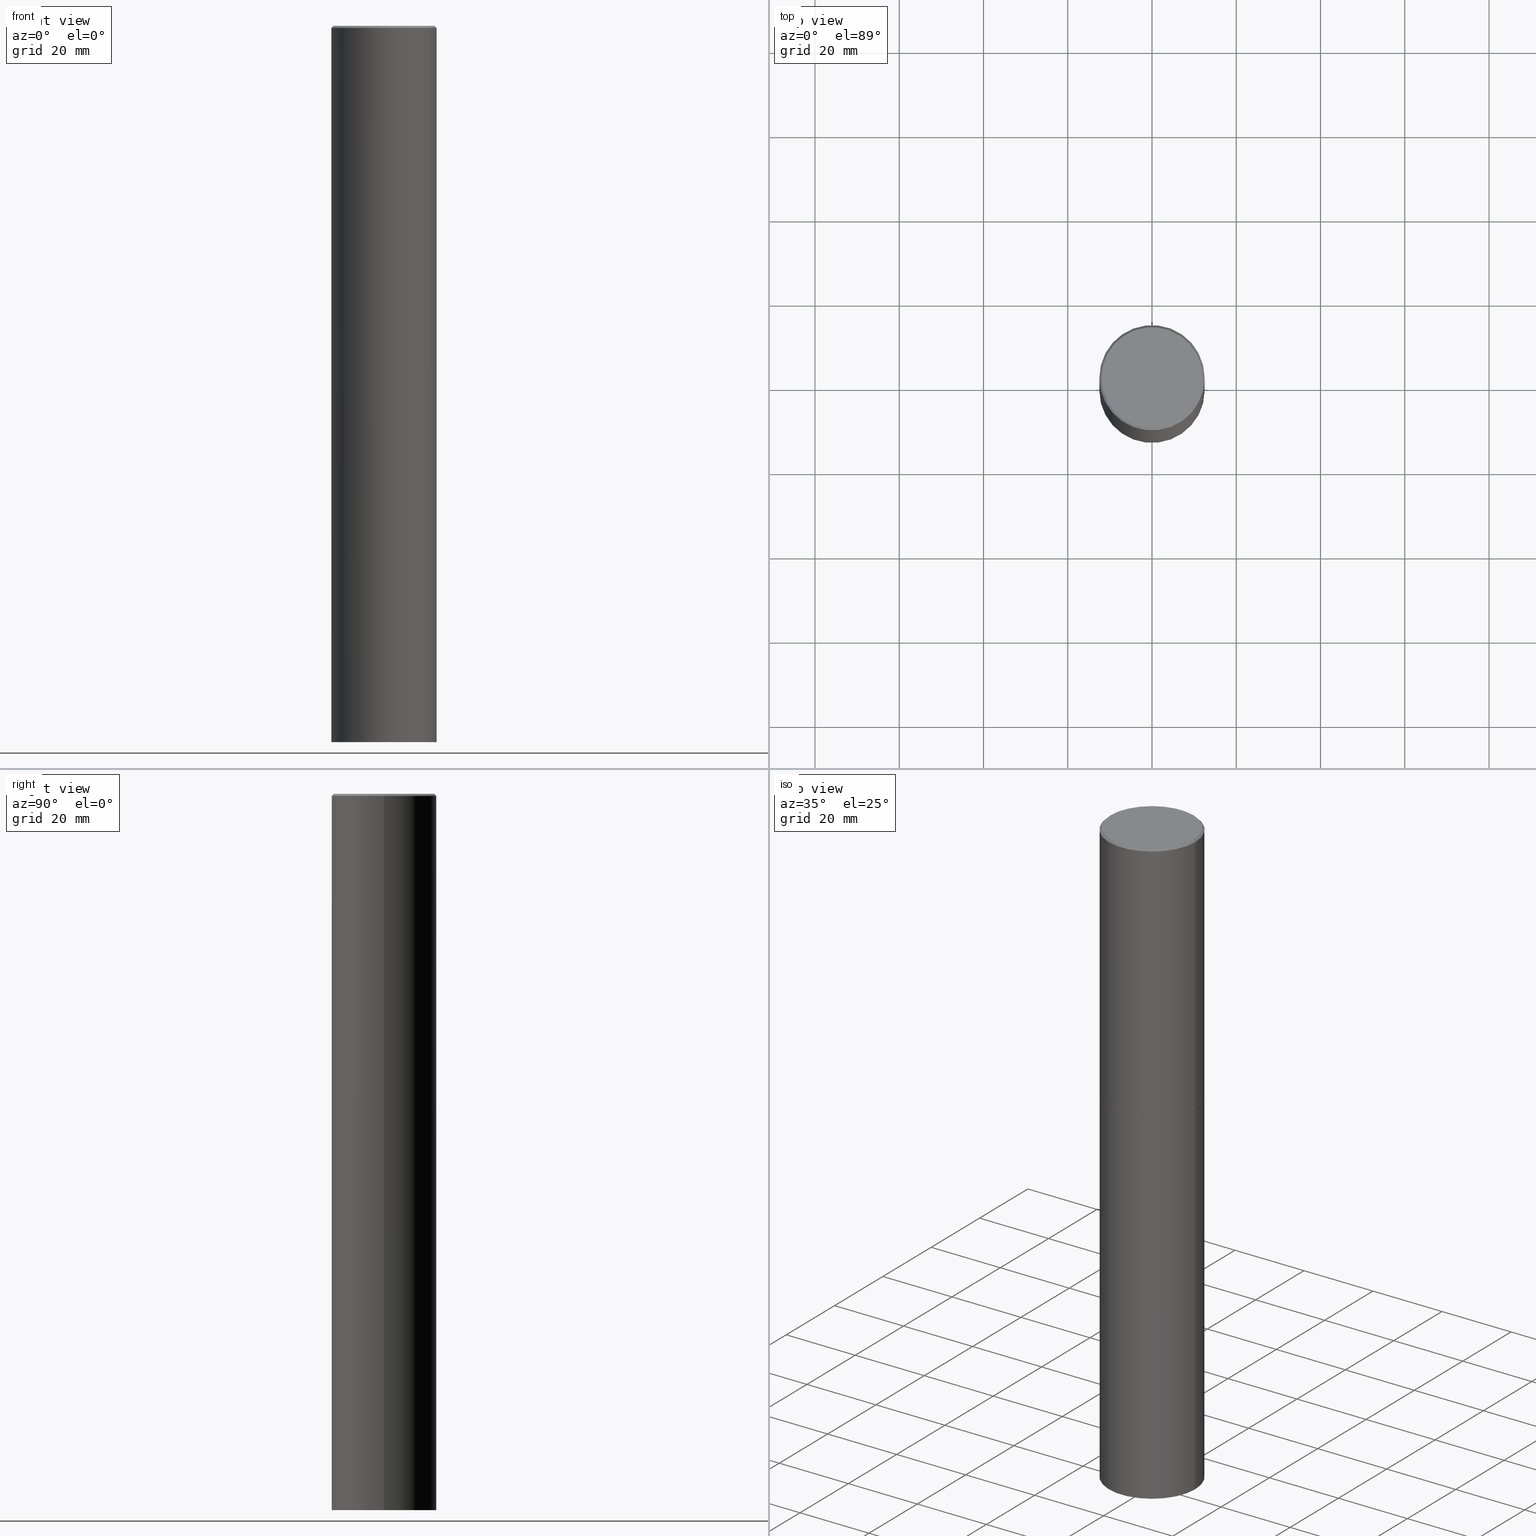
[diagram: canonical four-view strip — front | top / right | iso, engineering-drawing reading convention]
A machine part, canonical four-view strip (front | top / right | iso — engineering-drawing reading convention). The complete STEP part file that produces these views, byte-faithful:
ISO-10303-21;
HEADER;
FILE_DESCRIPTION (( 'STEP AP203' ),
    '1' );
FILE_NAME ('74586.STEP',
    '2024-02-29T13:40:59',
    ( '' ),
    ( '' ),
    'SwSTEP 2.0',
    'SolidWorks 2023',
    '' );
FILE_SCHEMA (( 'CONFIG_CONTROL_DESIGN' ));
ENDSEC;

DATA;
#1 = ORIENTED_EDGE ( 'NONE', *, *, #71, .F. ) ;
#2 = CIRCLE ( 'NONE', #310, 0.4911499999999999755 ) ;
#3 = APPROVAL_PERSON_ORGANIZATION ( #169, #165, #304 ) ;
#4 = EDGE_LOOP ( 'NONE', ( #193, #118, #115, #312 ) ) ;
#5 = DIRECTION ( 'NONE',  ( 2.438088387897960049E-29, -3.491481338843145188E-15, -1.000000000000000000 ) ) ;
#6 = DIRECTION ( 'NONE',  ( -2.445468806185136597E-29, 3.491481338843145583E-15, 1.000000000000000000 ) ) ;
#7 = PERSON ( 'UNSPECIFIED', 'UNSPECIFIED', 'UNSPECIFIED', ('UNSPECIFIED'), ('UNSPECIFIED'), ('UNSPECIFIED') ) ;
#8 = AXIS2_PLACEMENT_3D ( 'NONE', #99, #317, #208 ) ;
#9 = CC_DESIGN_DATE_AND_TIME_ASSIGNMENT ( #311, #359, ( #184 ) ) ;
#10 = DIRECTION ( 'NONE',  ( 1.000000000000000000, -6.982962677686264344E-15, 0.000000000000000000 ) ) ;
#11 = AXIS2_PLACEMENT_3D ( 'NONE', #107, #296, #327 ) ;
#12 = CARTESIAN_POINT ( 'NONE',  ( 6.739467482965618232E-29, -9.622173421717824390E-15, -2.755900000000000016 ) ) ;
#13 = DIRECTION ( 'NONE',  ( 2.438088387897960049E-29, -3.491481338843145188E-15, -1.000000000000000000 ) ) ;
#14 = EDGE_CURVE ( 'NONE', #173, #120, #229, .T. ) ;
#15 =( LENGTH_UNIT ( ) NAMED_UNIT ( * ) SI_UNIT ( $, .METRE. ) );
#16 = AXIS2_PLACEMENT_3D ( 'NONE', #349, #213, #155 ) ;
#17 =( NAMED_UNIT ( * ) SI_UNIT ( $, .STERADIAN. ) SOLID_ANGLE_UNIT ( ) );
#18 = ORIENTED_EDGE ( 'NONE', *, *, #14, .T. ) ;
#19 = APPROVAL ( #139, 'UNSPECIFIED' ) ;
#20 = CONICAL_SURFACE ( 'NONE', #61, 0.4911499999999999755, 0.7853981633975507526 ) ;
#21 = APPROVAL_PERSON_ORGANIZATION ( #306, #35, #23 ) ;
#22 =( NAMED_UNIT ( * ) PLANE_ANGLE_UNIT ( ) SI_UNIT ( $, .RADIAN. ) );
#23 = APPROVAL_ROLE ( '' ) ;
#24 = VERTEX_POINT ( 'NONE', #175 ) ;
#25 = APPROVAL_STATUS ( 'not_yet_approved' ) ;
#26 = ORIENTED_EDGE ( 'NONE', *, *, #254, .T. ) ;
#27 = AXIS2_PLACEMENT_3D ( 'NONE', #153, #6, #69 ) ;
#28 = AXIS2_PLACEMENT_3D ( 'NONE', #329, #106, #326 ) ;
#29 = UNCERTAINTY_MEASURE_WITH_UNIT (LENGTH_MEASURE( 1.000000000000000082E-05 ), #353, 'distance_accuracy_value', 'NONE');
#30 = EDGE_LOOP ( 'NONE', ( #337, #122 ) ) ;
#31 = ADVANCED_FACE ( 'NONE', ( #335 ), #171, .T. ) ;
#32 = FACE_OUTER_BOUND ( 'NONE', #83, .T. ) ;
#33 = APPROVAL_ROLE ( '' ) ;
#34 = ORIENTED_EDGE ( 'NONE', *, *, #90, .T. ) ;
#35 = APPROVAL ( #25, 'UNSPECIFIED' ) ;
#36 = AXIS2_PLACEMENT_3D ( 'NONE', #12, #39, #10 ) ;
#37 = CARTESIAN_POINT ( 'NONE',  ( 0.000000000000000000, 0.000000000000000000, 0.000000000000000000 ) ) ;
#38 = DIRECTION ( 'NONE',  ( 1.000000000000000000, -6.982962677686265922E-15, 0.000000000000000000 ) ) ;
#39 = DIRECTION ( 'NONE',  ( -2.445468806185136597E-29, 3.491481338843145583E-15, 1.000000000000000000 ) ) ;
#40 = CARTESIAN_POINT ( 'NONE',  ( 6.739467482965618232E-29, -9.622173421717824390E-15, -2.755900000000000016 ) ) ;
#41 = CC_DESIGN_APPROVAL ( #165, ( #212 ) ) ;
#42 = CARTESIAN_POINT ( 'NONE',  ( 0.000000000000000000, 0.000000000000000000, 0.000000000000000000 ) ) ;
#43 = EDGE_CURVE ( 'NONE', #274, #232, #92, .T. ) ;
#44 = DIRECTION ( 'NONE',  ( 1.000000000000000000, -6.982962677686264344E-15, 0.000000000000000000 ) ) ;
#45 = PRODUCT ( '74586', '74586', '', ( #223 ) ) ;
#46 = CARTESIAN_POINT ( 'NONE',  ( -0.4921499999999999764, -1.299821836318722399E-14, -6.692899999999999849 ) ) ;
#47 = ADVANCED_FACE ( 'NONE', ( #32 ), #285, .T. ) ;
#48 = DIRECTION ( 'NONE',  ( -1.000000000000000000, 6.982962677686266711E-15, 0.000000000000000000 ) ) ;
#49 = DIMENSIONAL_EXPONENTS ( 1.000000000000000000, 0.000000000000000000, 0.000000000000000000, 0.000000000000000000, 0.000000000000000000, 0.000000000000000000, 0.000000000000000000 ) ;
#50 = ORIENTED_EDGE ( 'NONE', *, *, #179, .F. ) ;
#51 = CARTESIAN_POINT ( 'NONE',  ( -0.4721499999999995700, 3.331920641657998857E-15, 8.537024980177643606E-18 ) ) ;
#52 = ORIENTED_EDGE ( 'NONE', *, *, #264, .F. ) ;
#53 = DESIGN_CONTEXT ( 'detailed design', #348, 'design' ) ;
#54 = CC_DESIGN_APPROVAL ( #19, ( #320 ) ) ;
#55 = PERSON_AND_ORGANIZATION ( #7, #237 ) ;
#56 = ORIENTED_EDGE ( 'NONE', *, *, #205, .T. ) ;
#57 = EDGE_CURVE ( 'NONE', #272, #232, #253, .T. ) ;
#58 = DIRECTION ( 'NONE',  ( -0.7071067811866199593, 7.493145998870616062E-15, 0.7071067811864750752 ) ) ;
#59 = PERSON_AND_ORGANIZATION ( #7, #237 ) ;
#60 = CARTESIAN_POINT ( 'NONE',  ( 0.4921499999999995323, -3.446223716380119588E-15, -0.02000000000000009409 ) ) ;
#61 = AXIS2_PLACEMENT_3D ( 'NONE', #40, #182, #263 ) ;
#62 = ORIENTED_EDGE ( 'NONE', *, *, #254, .F. ) ;
#63 = APPLICATION_PROTOCOL_DEFINITION ( 'international standard', 'config_control_design', 1994, #348 ) ;
#64 = EDGE_LOOP ( 'NONE', ( #309, #52 ) ) ;
#65 = CYLINDRICAL_SURFACE ( 'NONE', #85, 0.4921499999999997543 ) ;
#66 = CIRCLE ( 'NONE', #28, 0.4921499999999999764 ) ;
#67 = LOCAL_TIME ( 8, 40, 59.00000000000000000, #147 ) ;
#68 = CARTESIAN_POINT ( 'NONE',  ( 6.737022014159432629E-29, -9.618681940378981383E-15, -2.754900000000000126 ) ) ;
#69 = DIRECTION ( 'NONE',  ( 1.000000000000000000, -6.982962677686265922E-15, 0.000000000000000000 ) ) ;
#70 = CARTESIAN_POINT ( 'NONE',  ( 6.739467482965618232E-29, -9.622173421717824390E-15, -2.755900000000000016 ) ) ;
#71 = EDGE_CURVE ( 'NONE', #314, #82, #334, .T. ) ;
#72 = AXIS2_PLACEMENT_3D ( 'NONE', #283, #251, #227 ) ;
#73 = DIRECTION ( 'NONE',  ( 1.000000000000000000, -6.982962677686264344E-15, 0.000000000000000000 ) ) ;
#74 = AXIS2_PLACEMENT_3D ( 'NONE', #163, #266, #81 ) ;
#75 = CARTESIAN_POINT ( 'NONE',  ( -0.4921499999999995323, 3.366835455046429323E-15, -0.02000000000000009409 ) ) ;
#76 = FACE_OUTER_BOUND ( 'NONE', #113, .T. ) ;
#77 = DIRECTION ( 'NONE',  ( -2.445468806185136597E-29, 3.491481338843145583E-15, 1.000000000000000000 ) ) ;
#78 = CIRCLE ( 'NONE', #103, 0.4921499999999999764 ) ;
#79 = LOCAL_TIME ( 8, 40, 59.00000000000000000, #332 ) ;
#80 = CC_DESIGN_DATE_AND_TIME_ASSIGNMENT ( #112, #119, ( #212 ) ) ;
#81 = DIRECTION ( 'NONE',  ( 1.000000000000000000, -6.982962677686265922E-15, 0.000000000000000000 ) ) ;
#82 = VERTEX_POINT ( 'NONE', #364 ) ;
#83 = EDGE_LOOP ( 'NONE', ( #166, #109, #125, #62 ) ) ;
#84 = COORDINATED_UNIVERSAL_TIME_OFFSET ( 5, 0, .BEHIND. ) ;
#85 = AXIS2_PLACEMENT_3D ( 'NONE', #42, #150, #344 ) ;
#86 = CC_DESIGN_APPROVAL ( #35, ( #184 ) ) ;
#87 = CARTESIAN_POINT ( 'NONE',  ( 0.4921499999999999764, -3.436665081823295777E-15, 2.399810400207969603E-29 ) ) ;
#88 = APPROVAL_STATUS ( 'not_yet_approved' ) ;
#89 = EDGE_LOOP ( 'NONE', ( #248, #56 ) ) ;
#90 = EDGE_CURVE ( 'NONE', #24, #195, #305, .T. ) ;
#91 = CALENDAR_DATE ( 2024, 29, 2 ) ;
#92 = LINE ( 'NONE', #60, #172 ) ;
#93 = LOCAL_TIME ( 8, 40, 59.00000000000000000, #196 ) ;
#94 = PERSON_AND_ORGANIZATION_ROLE ( 'creator' ) ;
#95 = ORIENTED_EDGE ( 'NONE', *, *, #149, .F. ) ;
#96 = ORIENTED_EDGE ( 'NONE', *, *, #101, .F. ) ;
#97 = CARTESIAN_POINT ( 'NONE',  ( 0.4921499999999999764, -1.305534702220227716E-14, -2.754900000000000126 ) ) ;
#98 = CIRCLE ( 'NONE', #246, 0.4921499999999999764 ) ;
#99 = CARTESIAN_POINT ( 'NONE',  ( -2.087702828670439639E-46, 2.980686340760894400E-32, 8.537024980200822558E-18 ) ) ;
#100 = DIRECTION ( 'NONE',  ( -1.000000000000000000, 6.982962677686265922E-15, -4.876176775795935793E-29 ) ) ;
#101 = EDGE_CURVE ( 'NONE', #24, #314, #319, .T. ) ;
#102 = CARTESIAN_POINT ( 'NONE',  ( -0.4921499999999997543, 3.496936074043331319E-15, -2.420853904668950668E-29 ) ) ;
#103 = AXIS2_PLACEMENT_3D ( 'NONE', #68, #186, #218 ) ;
#104 = DIRECTION ( 'NONE',  ( 1.000000000000000000, -6.982962677686265922E-15, 4.876176775795935793E-29 ) ) ;
#105 = CARTESIAN_POINT ( 'NONE',  ( 6.739467482965618232E-29, -9.622173421717824390E-15, -2.755900000000000016 ) ) ;
#106 = DIRECTION ( 'NONE',  ( -2.445468806185136597E-29, 3.491481338843145583E-15, 1.000000000000000000 ) ) ;
#107 = CARTESIAN_POINT ( 'NONE',  ( 4.890937612370296805E-31, -6.982962677686323656E-17, -0.02000000000000009409 ) ) ;
#108 = AXIS2_PLACEMENT_3D ( 'NONE', #130, #5, #236 ) ;
#109 = ORIENTED_EDGE ( 'NONE', *, *, #275, .T. ) ;
#110 = DIRECTION ( 'NONE',  ( 2.445468806185136597E-29, -3.491481338843145583E-15, -1.000000000000000000 ) ) ;
#111 = ADVANCED_FACE ( 'NONE', ( #321 ), #20, .T. ) ;
#112 = DATE_AND_TIME ( #121, #93 ) ;
#113 = EDGE_LOOP ( 'NONE', ( #300, #18, #360, #301 ) ) ;
#114 = SHAPE_DEFINITION_REPRESENTATION ( #276, #315 ) ;
#115 = ORIENTED_EDGE ( 'NONE', *, *, #302, .T. ) ;
#116 = VECTOR ( 'NONE', #58, 39.37007874015748143 ) ;
#117 = AXIS2_PLACEMENT_3D ( 'NONE', #105, #77, #44 ) ;
#118 = ORIENTED_EDGE ( 'NONE', *, *, #43, .T. ) ;
#119 = DATE_TIME_ROLE ( 'creation_date' ) ;
#120 = VERTEX_POINT ( 'NONE', #178 ) ;
#121 = CALENDAR_DATE ( 2024, 29, 2 ) ;
#122 = ORIENTED_EDGE ( 'NONE', *, *, #330, .T. ) ;
#123 = AXIS2_PLACEMENT_3D ( 'NONE', #346, #261, #260 ) ;
#124 = CC_DESIGN_SECURITY_CLASSIFICATION ( #184, ( #320 ) ) ;
#125 = ORIENTED_EDGE ( 'NONE', *, *, #57, .T. ) ;
#126 = PLANE ( 'NONE',  #325 ) ;
#127 = CARTESIAN_POINT ( 'NONE',  ( 0.4921499999999995323, -3.446223716380119588E-15, -0.02000000000000009409 ) ) ;
#128 = CARTESIAN_POINT ( 'NONE',  ( 1.636727817291649966E-28, -2.336813545274328780E-14, -6.692899999999999849 ) ) ;
#129 = ADVANCED_FACE ( 'NONE', ( #294 ), #180, .T. ) ;
#130 = CARTESIAN_POINT ( 'NONE',  ( 3.436665081823459465E-15, 0.4921499999999766062, -6.692900000000002514 ) ) ;
#131 = FACE_OUTER_BOUND ( 'NONE', #282, .T. ) ;
#132 = CARTESIAN_POINT ( 'NONE',  ( 0.4911499999999999755, -1.305185554086343257E-14, -2.755900000000000016 ) ) ;
#133 =( GEOMETRIC_REPRESENTATION_CONTEXT ( 3 ) GLOBAL_UNCERTAINTY_ASSIGNED_CONTEXT ( ( #29 ) ) GLOBAL_UNIT_ASSIGNED_CONTEXT ( ( #353, #22, #17 ) ) REPRESENTATION_CONTEXT ( 'NONE', 'WORKASPACE' ) );
#134 = FACE_OUTER_BOUND ( 'NONE', #64, .T. ) ;
#135 = ORIENTED_EDGE ( 'NONE', *, *, #345, .T. ) ;
#136 = CARTESIAN_POINT ( 'NONE',  ( 0.4911499999999999755, -1.305185554086343257E-14, -2.755900000000000016 ) ) ;
#137 = EDGE_LOOP ( 'NONE', ( #1, #191, #34, #204 ) ) ;
#138 = LOCAL_TIME ( 8, 40, 59.00000000000000000, #84 ) ;
#139 = APPROVAL_STATUS ( 'not_yet_approved' ) ;
#140 = CARTESIAN_POINT ( 'NONE',  ( -0.4911499999999999755, -6.132342775032092501E-15, -2.755900000000000016 ) ) ;
#141 = PERSON_AND_ORGANIZATION ( #7, #237 ) ;
#142 = DIRECTION ( 'NONE',  ( 0.7071067811865454633, -7.319954787623246579E-15, -0.7071067811865493491 ) ) ;
#143 = VECTOR ( 'NONE', #234, 39.37007874015748143 ) ;
#144 = CIRCLE ( 'NONE', #11, 0.4921499999999995323 ) ;
#145 = ORIENTED_EDGE ( 'NONE', *, *, #57, .F. ) ;
#146 = CARTESIAN_POINT ( 'NONE',  ( 0.000000000000000000, 0.000000000000000000, 0.000000000000000000 ) ) ;
#147 = COORDINATED_UNIVERSAL_TIME_OFFSET ( 5, 0, .BEHIND. ) ;
#148 = DIRECTION ( 'NONE',  ( -2.445468806185136877E-29, 3.491481338843145188E-15, 1.000000000000000000 ) ) ;
#149 = EDGE_CURVE ( 'NONE', #279, #274, #333, .T. ) ;
#150 = DIRECTION ( 'NONE',  ( -2.445468806185136597E-29, 3.491481338843145583E-15, 1.000000000000000000 ) ) ;
#151 = DIRECTION ( 'NONE',  ( 2.445468806185136597E-29, -3.491481338843145583E-15, -1.000000000000000000 ) ) ;
#152 = ADVANCED_FACE ( 'NONE', ( #131 ), #65, .T. ) ;
#153 = CARTESIAN_POINT ( 'NONE',  ( 6.739467482965618232E-29, -9.622173421717824390E-15, -2.755900000000000016 ) ) ;
#154 = PLANE ( 'NONE',  #108 ) ;
#155 = DIRECTION ( 'NONE',  ( 1.000000000000000000, -6.982962677686266711E-15, 0.000000000000000000 ) ) ;
#156 = FACE_OUTER_BOUND ( 'NONE', #4, .T. ) ;
#157 = DIRECTION ( 'NONE',  ( 1.000000000000000000, -6.982962677686265922E-15, 0.000000000000000000 ) ) ;
#158 = AXIS2_PLACEMENT_3D ( 'NONE', #273, #110, #48 ) ;
#159 = ORIENTED_EDGE ( 'NONE', *, *, #264, .T. ) ;
#160 = ADVANCED_FACE ( 'NONE', ( #259 ), #289, .F. ) ;
#161 = DIRECTION ( 'NONE',  ( -2.445468806185136597E-29, 3.491481338843145583E-15, 1.000000000000000000 ) ) ;
#162 = ORIENTED_EDGE ( 'NONE', *, *, #302, .F. ) ;
#163 = CARTESIAN_POINT ( 'NONE',  ( 6.737022014159432629E-29, -9.618681940378981383E-15, -2.754900000000000126 ) ) ;
#164 = CIRCLE ( 'NONE', #16, 0.4921499999999995323 ) ;
#165 = APPROVAL ( #88, 'UNSPECIFIED' ) ;
#166 = ORIENTED_EDGE ( 'NONE', *, *, #230, .F. ) ;
#167 = APPROVAL_DATE_TIME ( #336, #19 ) ;
#168 = ORIENTED_EDGE ( 'NONE', *, *, #71, .T. ) ;
#169 = PERSON_AND_ORGANIZATION ( #7, #237 ) ;
#170 = CARTESIAN_POINT ( 'NONE',  ( 0.4921499999999997543, -3.436665081823294199E-15, 2.399810400207968762E-29 ) ) ;
#171 = CYLINDRICAL_SURFACE ( 'NONE', #72, 0.4921499999999999764 ) ;
#172 = VECTOR ( 'NONE', #142, 39.37007874015748854 ) ;
#173 = VERTEX_POINT ( 'NONE', #238 ) ;
#174 = PERSON_AND_ORGANIZATION_ROLE ( 'design_owner' ) ;
#175 = CARTESIAN_POINT ( 'NONE',  ( 0.4921499999999999764, -2.680480053456658516E-14, -6.692899999999999849 ) ) ;
#176 = DIRECTION ( 'NONE',  ( -1.000000000000000000, 6.982962677686265922E-15, -4.876176775795935793E-29 ) ) ;
#177 = VECTOR ( 'NONE', #292, 39.37007874015748143 ) ;
#178 = CARTESIAN_POINT ( 'NONE',  ( -0.4921499999999999764, -1.347319709534586880E-15, -2.754900000000000126 ) ) ;
#179 = EDGE_CURVE ( 'NONE', #195, #82, #343, .T. ) ;
#180 = CYLINDRICAL_SURFACE ( 'NONE', #189, 0.4921499999999999764 ) ;
#181 = CC_DESIGN_PERSON_AND_ORGANIZATION_ASSIGNMENT ( #252, #313, ( #320 ) ) ;
#182 = DIRECTION ( 'NONE',  ( -2.445468806185136597E-29, 3.491481338843145583E-15, 1.000000000000000000 ) ) ;
#183 = AXIS2_PLACEMENT_3D ( 'NONE', #342, #151, #241 ) ;
#184 = SECURITY_CLASSIFICATION ( '', '', #277 ) ;
#185 = DIRECTION ( 'NONE',  ( -2.445468806185136597E-29, 3.491481338843145583E-15, 1.000000000000000000 ) ) ;
#186 = DIRECTION ( 'NONE',  ( -2.445468806185136597E-29, 3.491481338843145583E-15, 1.000000000000000000 ) ) ;
#187 = ADVANCED_FACE ( 'NONE', ( #286 ), #281, .T. ) ;
#188 = DIRECTION ( 'NONE',  ( -0.7071067811865454633, 2.468850131082235761E-15, -0.7071067811865493491 ) ) ;
#189 = AXIS2_PLACEMENT_3D ( 'NONE', #37, #324, #323 ) ;
#190 = CARTESIAN_POINT ( 'NONE',  ( 6.739467482965618232E-29, -9.622173421717824390E-15, -2.755900000000000016 ) ) ;
#191 = ORIENTED_EDGE ( 'NONE', *, *, #291, .T. ) ;
#192 = LINE ( 'NONE', #136, #363 ) ;
#193 = ORIENTED_EDGE ( 'NONE', *, *, #205, .F. ) ;
#194 = CARTESIAN_POINT ( 'NONE',  ( -0.4921499999999995323, 3.366835455046429323E-15, -0.02000000000000009409 ) ) ;
#195 = VERTEX_POINT ( 'NONE', #350 ) ;
#196 = COORDINATED_UNIVERSAL_TIME_OFFSET ( 5, 0, .BEHIND. ) ;
#197 = VECTOR ( 'NONE', #148, 39.37007874015748143 ) ;
#198 = AXIS2_PLACEMENT_3D ( 'NONE', #303, #355, #249 ) ;
#199 = PERSON_AND_ORGANIZATION ( #7, #237 ) ;
#200 = DIRECTION ( 'NONE',  ( -2.445468806185136877E-29, 3.491481338843145188E-15, 1.000000000000000000 ) ) ;
#201 = CALENDAR_DATE ( 2024, 29, 2 ) ;
#202 = ORIENTED_EDGE ( 'NONE', *, *, #230, .T. ) ;
#203 = APPROVAL_DATE_TIME ( #361, #35 ) ;
#204 = ORIENTED_EDGE ( 'NONE', *, *, #330, .F. ) ;
#205 = EDGE_CURVE ( 'NONE', #274, #279, #220, .T. ) ;
#206 = PERSON_AND_ORGANIZATION_ROLE ( 'creator' ) ;
#207 = ORIENTED_EDGE ( 'NONE', *, *, #275, .F. ) ;
#208 = DIRECTION ( 'NONE',  ( 1.000000000000000000, -6.982962677686265922E-15, 4.876006802227163537E-29 ) ) ;
#209 = LINE ( 'NONE', #102, #177 ) ;
#210 = LOCAL_TIME ( 8, 40, 59.00000000000000000, #250 ) ;
#211 = FACE_OUTER_BOUND ( 'NONE', #30, .T. ) ;
#212 = PRODUCT_DEFINITION ( 'UNKNOWN', '', #320, #53 ) ;
#213 = DIRECTION ( 'NONE',  ( -2.445468806185136597E-29, 3.491481338843145583E-15, 1.000000000000000000 ) ) ;
#214 = DIRECTION ( 'NONE',  ( 2.438088387897960049E-29, -3.491481338843145188E-15, -1.000000000000000000 ) ) ;
#215 = CONICAL_SURFACE ( 'NONE', #158, 0.4921499999999995323, 0.7853981633974456145 ) ;
#216 = EDGE_CURVE ( 'NONE', #331, #173, #262, .T. ) ;
#217 = DIRECTION ( 'NONE',  ( -2.438088387897960049E-29, 3.491481338843145188E-15, 1.000000000000000000 ) ) ;
#218 = DIRECTION ( 'NONE',  ( 1.000000000000000000, -6.982962677686265922E-15, 0.000000000000000000 ) ) ;
#219 = ORIENTED_EDGE ( 'NONE', *, *, #101, .T. ) ;
#220 = CIRCLE ( 'NONE', #123, 0.4721499999999995700 ) ;
#221 = APPLICATION_PROTOCOL_DEFINITION ( 'international standard', 'config_control_design', 1994, #366 ) ;
#222 = CC_DESIGN_PERSON_AND_ORGANIZATION_ASSIGNMENT ( #59, #206, ( #320 ) ) ;
#223 = MECHANICAL_CONTEXT ( 'NONE', #366, 'mechanical' ) ;
#224 = ORIENTED_EDGE ( 'NONE', *, *, #291, .F. ) ;
#225 = PERSON_AND_ORGANIZATION_ROLE ( 'classification_officer' ) ;
#226 = AXIS2_PLACEMENT_3D ( 'NONE', #354, #217, #104 ) ;
#227 = DIRECTION ( 'NONE',  ( 1.000000000000000000, -6.982962677686265922E-15, 4.876176775795935793E-29 ) ) ;
#228 = ORIENTED_EDGE ( 'NONE', *, *, #43, .F. ) ;
#229 = LINE ( 'NONE', #140, #116 ) ;
#230 = EDGE_CURVE ( 'NONE', #120, #278, #209, .T. ) ;
#231 = PERSON_AND_ORGANIZATION ( #7, #237 ) ;
#232 = VERTEX_POINT ( 'NONE', #127 ) ;
#233 = CC_DESIGN_PERSON_AND_ORGANIZATION_ASSIGNMENT ( #231, #225, ( #184 ) ) ;
#234 = DIRECTION ( 'NONE',  ( -2.445468806185136877E-29, 3.491481338843145188E-15, 1.000000000000000000 ) ) ;
#235 = DIRECTION ( 'NONE',  ( -2.445468806185136597E-29, 3.491481338843145583E-15, 1.000000000000000000 ) ) ;
#236 = DIRECTION ( 'NONE',  ( -1.000000000000000000, 6.982962677686265922E-15, -4.876176775795935793E-29 ) ) ;
#237 = ORGANIZATION ( 'UNSPECIFIED', 'UNSPECIFIED', '' ) ;
#238 = CARTESIAN_POINT ( 'NONE',  ( -0.4911499999999999755, -6.127044320683870099E-15, -2.755900000000000016 ) ) ;
#239 = CARTESIAN_POINT ( 'NONE',  ( 3.297005828269567603E-15, 0.4721499999999995700, -1.644234401644689291E-15 ) ) ;
#240 = ADVANCED_FACE ( 'NONE', ( #265 ), #154, .T. ) ;
#241 = DIRECTION ( 'NONE',  ( -1.000000000000000000, 6.982962677686266711E-15, 0.000000000000000000 ) ) ;
#242 = LENGTH_MEASURE_WITH_UNIT ( LENGTH_MEASURE( 0.02539999999999999897 ), #15 );
#243 = ADVANCED_FACE ( 'NONE', ( #211 ), #126, .F. ) ;
#244 = CC_DESIGN_PERSON_AND_ORGANIZATION_ASSIGNMENT ( #141, #94, ( #212 ) ) ;
#245 = AXIS2_PLACEMENT_3D ( 'NONE', #239, #13, #176 ) ;
#246 = AXIS2_PLACEMENT_3D ( 'NONE', #190, #161, #157 ) ;
#247 = PLANE ( 'NONE',  #226 ) ;
#248 = ORIENTED_EDGE ( 'NONE', *, *, #149, .T. ) ;
#249 = DIRECTION ( 'NONE',  ( 1.000000000000000000, 0.000000000000000000, 0.000000000000000000 ) ) ;
#250 = COORDINATED_UNIVERSAL_TIME_OFFSET ( 5, 0, .BEHIND. ) ;
#251 = DIRECTION ( 'NONE',  ( -2.445468806185136597E-29, 3.491481338843145583E-15, 1.000000000000000000 ) ) ;
#252 = PERSON_AND_ORGANIZATION ( #7, #237 ) ;
#253 = LINE ( 'NONE', #170, #197 ) ;
#254 = EDGE_CURVE ( 'NONE', #278, #232, #164, .T. ) ;
#255 = EDGE_LOOP ( 'NONE', ( #358, #159, #307, #207 ) ) ;
#256 = CALENDAR_DATE ( 2024, 29, 2 ) ;
#257 = DIRECTION ( 'NONE',  ( -2.445468806185136597E-29, 3.491481338843145583E-15, 1.000000000000000000 ) ) ;
#258 = CARTESIAN_POINT ( 'NONE',  ( -0.4921499999999999764, 3.496936074043332897E-15, -2.420853904668951509E-29 ) ) ;
#259 = FACE_OUTER_BOUND ( 'NONE', #89, .T. ) ;
#260 = DIRECTION ( 'NONE',  ( 1.000000000000000000, -6.982962677686265922E-15, 4.876006802227163537E-29 ) ) ;
#261 = DIRECTION ( 'NONE',  ( -2.445468806185136597E-29, 3.491481338843145583E-15, 1.000000000000000000 ) ) ;
#262 = CIRCLE ( 'NONE', #36, 0.4911499999999999755 ) ;
#263 = DIRECTION ( 'NONE',  ( 1.000000000000000000, -6.982962677686264344E-15, 0.000000000000000000 ) ) ;
#264 = EDGE_CURVE ( 'NONE', #173, #331, #2, .T. ) ;
#265 = FACE_OUTER_BOUND ( 'NONE', #341, .T. ) ;
#266 = DIRECTION ( 'NONE',  ( -2.445468806185136597E-29, 3.491481338843145583E-15, 1.000000000000000000 ) ) ;
#267 = AXIS2_PLACEMENT_3D ( 'NONE', #146, #257, #362 ) ;
#268 = VECTOR ( 'NONE', #188, 39.37007874015748854 ) ;
#269 = ORIENTED_EDGE ( 'NONE', *, *, #90, .F. ) ;
#270 = CC_DESIGN_PERSON_AND_ORGANIZATION_ASSIGNMENT ( #199, #174, ( #45 ) ) ;
#271 = EDGE_LOOP ( 'NONE', ( #219, #168, #50, #269 ) ) ;
#272 = VERTEX_POINT ( 'NONE', #97 ) ;
#273 = CARTESIAN_POINT ( 'NONE',  ( 4.890937612370296805E-31, -6.982962677686323656E-17, -0.02000000000000009409 ) ) ;
#274 = VERTEX_POINT ( 'NONE', #318 ) ;
#275 = EDGE_CURVE ( 'NONE', #120, #272, #78, .T. ) ;
#276 = PRODUCT_DEFINITION_SHAPE ( 'NONE', 'NONE',  #212 ) ;
#277 = SECURITY_CLASSIFICATION_LEVEL ( 'unclassified' ) ;
#278 = VERTEX_POINT ( 'NONE', #194 ) ;
#279 = VERTEX_POINT ( 'NONE', #51 ) ;
#280 = ADVANCED_FACE ( 'NONE', ( #134 ), #247, .F. ) ;
#281 = CONICAL_SURFACE ( 'NONE', #183, 0.4921499999999995323, 0.7853981633974456145 ) ;
#282 = EDGE_LOOP ( 'NONE', ( #340, #202, #162, #145 ) ) ;
#283 = CARTESIAN_POINT ( 'NONE',  ( 0.000000000000000000, 0.000000000000000000, 0.000000000000000000 ) ) ;
#284 = CALENDAR_DATE ( 2024, 29, 2 ) ;
#285 = CYLINDRICAL_SURFACE ( 'NONE', #267, 0.4921499999999997543 ) ;
#286 = FACE_OUTER_BOUND ( 'NONE', #365, .T. ) ;
#287 = VECTOR ( 'NONE', #200, 39.37007874015748143 ) ;
#288 = CIRCLE ( 'NONE', #74, 0.4921499999999999764 ) ;
#289 = PLANE ( 'NONE',  #245 ) ;
#290 = CARTESIAN_POINT ( 'NONE',  ( 3.436665081823363224E-15, 0.4921499999999903174, -2.755900000000001793 ) ) ;
#291 = EDGE_CURVE ( 'NONE', #314, #24, #66, .T. ) ;
#292 = DIRECTION ( 'NONE',  ( -2.445468806185136877E-29, 3.491481338843145188E-15, 1.000000000000000000 ) ) ;
#293 = CONICAL_SURFACE ( 'NONE', #117, 0.4911499999999999755, 0.7853981633975507526 ) ;
#294 = FACE_OUTER_BOUND ( 'NONE', #137, .T. ) ;
#295 = MANIFOLD_SOLID_BREP ( 'Body-Move/Copy2[2]', #328 ) ;
#296 = DIRECTION ( 'NONE',  ( -2.445468806185136597E-29, 3.491481338843145583E-15, 1.000000000000000000 ) ) ;
#297 = MANIFOLD_SOLID_BREP ( 'Body-Move/Copy2[1]', #351 ) ;
#298 = APPROVAL_PERSON_ORGANIZATION ( #55, #19, #33 ) ;
#299 = LINE ( 'NONE', #75, #268 ) ;
#300 = ORIENTED_EDGE ( 'NONE', *, *, #216, .T. ) ;
#301 = ORIENTED_EDGE ( 'NONE', *, *, #322, .F. ) ;
#302 = EDGE_CURVE ( 'NONE', #232, #278, #144, .T. ) ;
#303 = CARTESIAN_POINT ( 'NONE',  ( 0.000000000000000000, 0.000000000000000000, 0.000000000000000000 ) ) ;
#304 = APPROVAL_ROLE ( '' ) ;
#305 = LINE ( 'NONE', #87, #287 ) ;
#306 = PERSON_AND_ORGANIZATION ( #7, #237 ) ;
#307 = ORIENTED_EDGE ( 'NONE', *, *, #322, .T. ) ;
#308 = DATE_AND_TIME ( #284, #79 ) ;
#309 = ORIENTED_EDGE ( 'NONE', *, *, #216, .F. ) ;
#310 = AXIS2_PLACEMENT_3D ( 'NONE', #70, #235, #73 ) ;
#311 = DATE_AND_TIME ( #256, #67 ) ;
#312 = ORIENTED_EDGE ( 'NONE', *, *, #345, .F. ) ;
#313 = PERSON_AND_ORGANIZATION_ROLE ( 'design_supplier' ) ;
#314 = VERTEX_POINT ( 'NONE', #46 ) ;
#315 = ADVANCED_BREP_SHAPE_REPRESENTATION ( '74586', ( #297, #295, #198 ), #133 ) ;
#316 = ADVANCED_FACE ( 'NONE', ( #76 ), #293, .T. ) ;
#317 = DIRECTION ( 'NONE',  ( -2.445468806185136597E-29, 3.491481338843145583E-15, 1.000000000000000000 ) ) ;
#318 = CARTESIAN_POINT ( 'NONE',  ( 0.4721499999999995700, -3.342703923013973002E-15, 8.537024980224040028E-18 ) ) ;
#319 = CIRCLE ( 'NONE', #338, 0.4921499999999999764 ) ;
#320 = PRODUCT_DEFINITION_FORMATION_WITH_SPECIFIED_SOURCE ( 'ANY', '', #45, .NOT_KNOWN. ) ;
#321 = FACE_OUTER_BOUND ( 'NONE', #255, .T. ) ;
#322 = EDGE_CURVE ( 'NONE', #331, #272, #192, .T. ) ;
#323 = DIRECTION ( 'NONE',  ( 1.000000000000000000, -6.982962677686265922E-15, 4.876176775795935793E-29 ) ) ;
#324 = DIRECTION ( 'NONE',  ( -2.445468806185136597E-29, 3.491481338843145583E-15, 1.000000000000000000 ) ) ;
#325 = AXIS2_PLACEMENT_3D ( 'NONE', #290, #214, #100 ) ;
#326 = DIRECTION ( 'NONE',  ( 1.000000000000000000, -6.982962677686265922E-15, 0.000000000000000000 ) ) ;
#327 = DIRECTION ( 'NONE',  ( 1.000000000000000000, -6.982962677686266711E-15, 0.000000000000000000 ) ) ;
#328 = CLOSED_SHELL ( 'NONE', ( #316, #152, #352, #187, #47, #111, #280, #160 ) ) ;
#329 = CARTESIAN_POINT ( 'NONE',  ( 1.636727817291649966E-28, -2.336813545274328780E-14, -6.692899999999999849 ) ) ;
#330 = EDGE_CURVE ( 'NONE', #82, #195, #98, .T. ) ;
#331 = VERTEX_POINT ( 'NONE', #132 ) ;
#332 = COORDINATED_UNIVERSAL_TIME_OFFSET ( 5, 0, .BEHIND. ) ;
#333 = CIRCLE ( 'NONE', #8, 0.4721499999999995700 ) ;
#334 = LINE ( 'NONE', #258, #143 ) ;
#335 = FACE_OUTER_BOUND ( 'NONE', #271, .T. ) ;
#336 = DATE_AND_TIME ( #201, #138 ) ;
#337 = ORIENTED_EDGE ( 'NONE', *, *, #179, .T. ) ;
#338 = AXIS2_PLACEMENT_3D ( 'NONE', #128, #185, #38 ) ;
#339 = APPROVAL_DATE_TIME ( #308, #165 ) ;
#340 = ORIENTED_EDGE ( 'NONE', *, *, #356, .T. ) ;
#341 = EDGE_LOOP ( 'NONE', ( #96, #224 ) ) ;
#342 = CARTESIAN_POINT ( 'NONE',  ( 4.890937612370296805E-31, -6.982962677686323656E-17, -0.02000000000000009409 ) ) ;
#343 = CIRCLE ( 'NONE', #27, 0.4921499999999999764 ) ;
#344 = DIRECTION ( 'NONE',  ( 1.000000000000000000, -6.982962677686265922E-15, 4.876176775795936353E-29 ) ) ;
#345 = EDGE_CURVE ( 'NONE', #279, #278, #299, .T. ) ;
#346 = CARTESIAN_POINT ( 'NONE',  ( -2.087702828670439639E-46, 2.980686340760894400E-32, 8.537024980200822558E-18 ) ) ;
#347 = PRODUCT_RELATED_PRODUCT_CATEGORY ( 'detail', '', ( #45 ) ) ;
#348 = APPLICATION_CONTEXT ( 'configuration controlled 3d designs of mechanical parts and assemblies' ) ;
#349 = CARTESIAN_POINT ( 'NONE',  ( 4.890937612370296805E-31, -6.982962677686323656E-17, -0.02000000000000009409 ) ) ;
#350 = CARTESIAN_POINT ( 'NONE',  ( 0.4921499999999999764, -1.305883850354112017E-14, -2.755900000000000016 ) ) ;
#351 = CLOSED_SHELL ( 'NONE', ( #31, #240, #243, #129 ) ) ;
#352 = ADVANCED_FACE ( 'NONE', ( #156 ), #215, .T. ) ;
#353 =( CONVERSION_BASED_UNIT ( 'INCH', #242 ) LENGTH_UNIT ( ) NAMED_UNIT ( #49 ) );
#354 = CARTESIAN_POINT ( 'NONE',  ( 6.739467482965618232E-29, -9.622173421717824390E-15, -2.755900000000000016 ) ) ;
#355 = DIRECTION ( 'NONE',  ( 0.000000000000000000, 0.000000000000000000, 1.000000000000000000 ) ) ;
#356 = EDGE_CURVE ( 'NONE', #272, #120, #288, .T. ) ;
#357 = DIRECTION ( 'NONE',  ( 0.7071067811866199593, -2.468850131083015945E-15, 0.7071067811864750752 ) ) ;
#358 = ORIENTED_EDGE ( 'NONE', *, *, #14, .F. ) ;
#359 = DATE_TIME_ROLE ( 'classification_date' ) ;
#360 = ORIENTED_EDGE ( 'NONE', *, *, #356, .F. ) ;
#361 = DATE_AND_TIME ( #91, #210 ) ;
#362 = DIRECTION ( 'NONE',  ( 1.000000000000000000, -6.982962677686265922E-15, 4.876176775795936353E-29 ) ) ;
#363 = VECTOR ( 'NONE', #357, 39.37007874015748143 ) ;
#364 = CARTESIAN_POINT ( 'NONE',  ( -0.4921499999999999764, -1.299821836318722399E-14, -2.755900000000000016 ) ) ;
#365 = EDGE_LOOP ( 'NONE', ( #228, #95, #135, #26 ) ) ;
#366 = APPLICATION_CONTEXT ( 'configuration controlled 3d designs of mechanical parts and assemblies' ) ;
ENDSEC;
END-ISO-10303-21;
